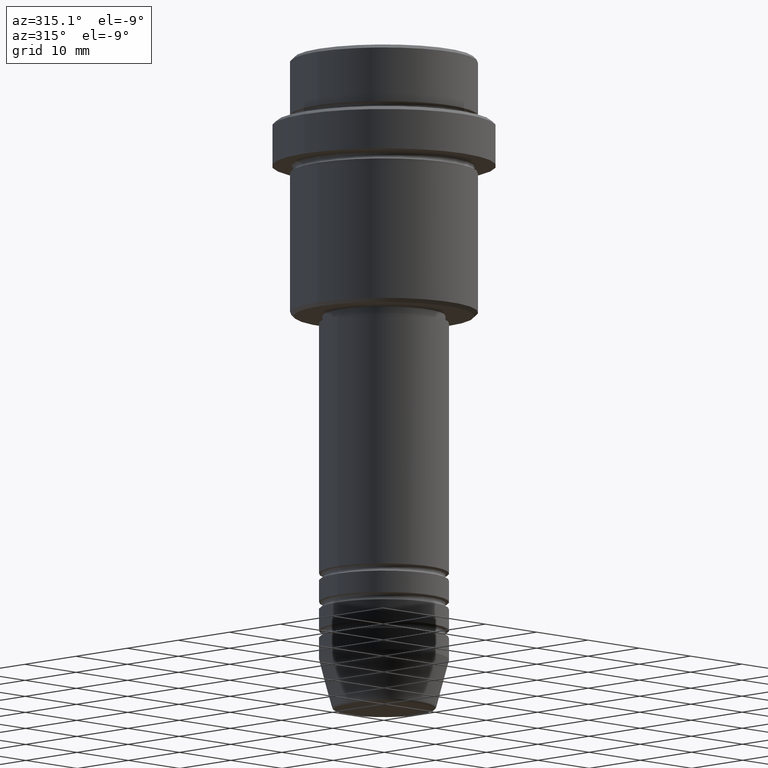
[diagram: clean part render]
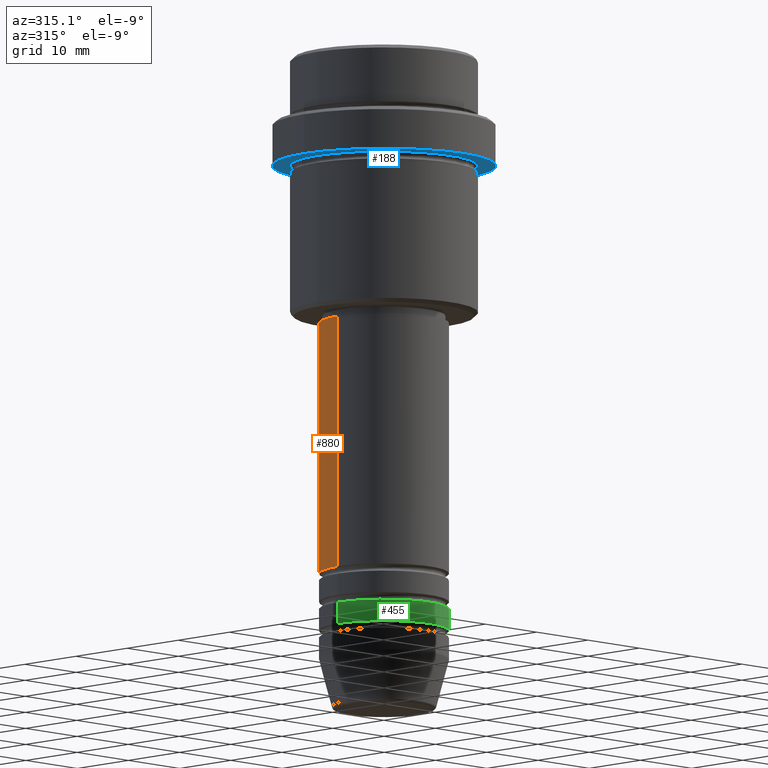
[diagram: same view with three faces highlighted in distinct colors, each labeled with its STEP entity id]
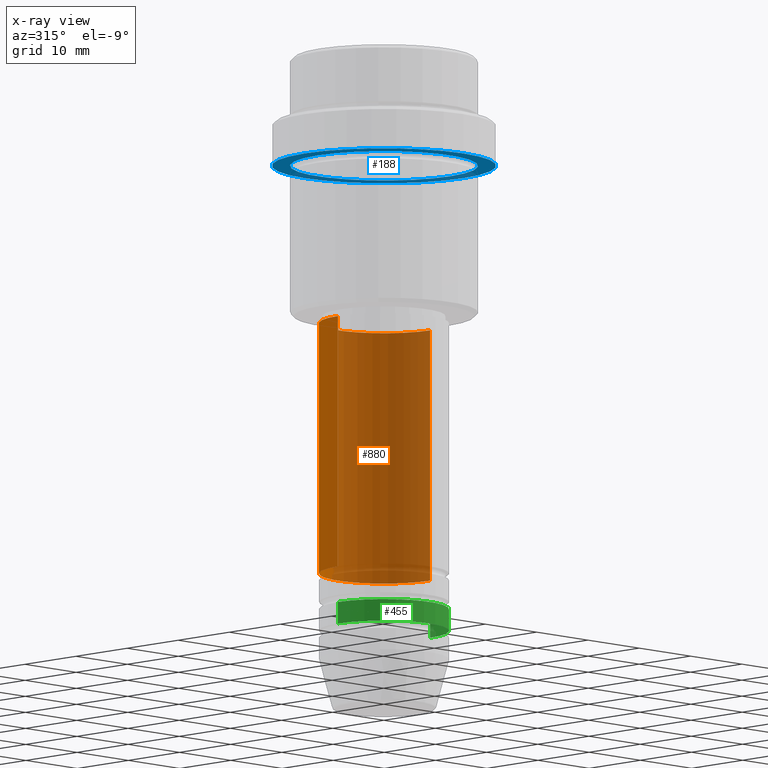
[diagram: x-ray of the same camera — body ghosted, the three highlighted faces saturated]
A machine part, auxiliary view with three faces highlighted in distinct colors.
The next image is the same camera in x-ray (body ghosted, the three faces saturated) — at least one of them is partly hidden behind the body in this view.
Their STEP definitions:

[orange] entity #880 — the highlighted cylindrical surface (partial cylindrical patch) has radius 9 mm, axis along (-0, -0, 1).
#17 = DIRECTION ( 'NONE',  ( -0.000000000000000000, -0.000000000000000000, 1.000000000000000000 ) ) ;
#63 = EDGE_CURVE ( 'NONE', #468, #1315, #1205, .T. ) ;
#82 = EDGE_CURVE ( 'NONE', #468, #1091, #256, .T. ) ;
#87 = CARTESIAN_POINT ( 'NONE',  ( -9.000000000000001776, 1.102182119232617911E-15, 0.000000000000000000 ) ) ;
#104 = VERTEX_POINT ( 'NONE', #361 ) ;
#118 = AXIS2_PLACEMENT_3D ( 'NONE', #894, #1191, #866 ) ;
#161 = AXIS2_PLACEMENT_3D ( 'NONE', #932, #399, #620 ) ;
#226 = CIRCLE ( 'NONE', #161, 9.000000000000001776 ) ;
#248 = VECTOR ( 'NONE', #1108, 1000.000000000000000 ) ;
#256 = LINE ( 'NONE', #472, #248 ) ;
#265 = EDGE_CURVE ( 'NONE', #1091, #104, #226, .T. ) ;
#286 = ORIENTED_EDGE ( 'NONE', *, *, #82, .F. ) ;
#361 = CARTESIAN_POINT ( 'NONE',  ( -9.000000000000001776, 1.102182119232617911E-15, -37.00000000000000000 ) ) ;
#396 = EDGE_CURVE ( 'NONE', #1315, #104, #533, .T. ) ;
#399 = DIRECTION ( 'NONE',  ( -0.000000000000000000, -0.000000000000000000, 1.000000000000000000 ) ) ;
#445 = AXIS2_PLACEMENT_3D ( 'NONE', #1306, #17, #758 ) ;
#468 = VERTEX_POINT ( 'NONE', #1300 ) ;
#472 = CARTESIAN_POINT ( 'NONE',  ( 9.000000000000001776, 0.000000000000000000, 0.000000000000000000 ) ) ;
#533 = LINE ( 'NONE', #87, #867 ) ;
#539 = ORIENTED_EDGE ( 'NONE', *, *, #396, .T. ) ;
#620 = DIRECTION ( 'NONE',  ( 1.000000000000000000, 0.000000000000000000, 0.000000000000000000 ) ) ;
#632 = DIRECTION ( 'NONE',  ( -0.000000000000000000, -0.000000000000000000, 1.000000000000000000 ) ) ;
#677 = ORIENTED_EDGE ( 'NONE', *, *, #63, .T. ) ;
#758 = DIRECTION ( 'NONE',  ( 1.000000000000000000, 0.000000000000000000, 0.000000000000000000 ) ) ;
#850 = CYLINDRICAL_SURFACE ( 'NONE', #118, 9.000000000000001776 ) ;
#866 = DIRECTION ( 'NONE',  ( 1.000000000000000000, 0.000000000000000000, 0.000000000000000000 ) ) ;
#867 = VECTOR ( 'NONE', #632, 1000.000000000000000 ) ;
#880 = ADVANCED_FACE ( 'NONE', ( #1171 ), #850, .T. ) ;
#894 = CARTESIAN_POINT ( 'NONE',  ( 0.000000000000000000, 0.000000000000000000, 0.000000000000000000 ) ) ;
#932 = CARTESIAN_POINT ( 'NONE',  ( 0.000000000000000000, 0.000000000000000000, -37.00000000000000000 ) ) ;
#1042 = CARTESIAN_POINT ( 'NONE',  ( 9.000000000000001776, 0.000000000000000000, -37.00000000000000000 ) ) ;
#1086 = CARTESIAN_POINT ( 'NONE',  ( -9.000000000000000000, 1.102182119232617714E-15, -71.99999999999987210 ) ) ;
#1091 = VERTEX_POINT ( 'NONE', #1042 ) ;
#1108 = DIRECTION ( 'NONE',  ( -0.000000000000000000, -0.000000000000000000, 1.000000000000000000 ) ) ;
#1126 = EDGE_LOOP ( 'NONE', ( #677, #539, #1386, #286 ) ) ;
#1171 = FACE_OUTER_BOUND ( 'NONE', #1126, .T. ) ;
#1191 = DIRECTION ( 'NONE',  ( -0.000000000000000000, -0.000000000000000000, 1.000000000000000000 ) ) ;
#1205 = CIRCLE ( 'NONE', #445, 9.000000000000000000 ) ;
#1300 = CARTESIAN_POINT ( 'NONE',  ( 9.000000000000000000, 0.000000000000000000, -71.99999999999987210 ) ) ;
#1306 = CARTESIAN_POINT ( 'NONE',  ( 0.000000000000000000, 0.000000000000000000, -71.99999999999987210 ) ) ;
#1315 = VERTEX_POINT ( 'NONE', #1086 ) ;
#1386 = ORIENTED_EDGE ( 'NONE', *, *, #265, .F. ) ;

[blue] entity #188 — the highlighted planar face has unit normal (0, 0, -1).
#22 = DIRECTION ( 'NONE',  ( -1.000000000000000000, 0.000000000000000000, -0.000000000000000000 ) ) ;
#34 = DIRECTION ( 'NONE',  ( 1.000000000000000000, 0.000000000000000000, 0.000000000000000000 ) ) ;
#106 = CARTESIAN_POINT ( 'NONE',  ( 0.000000000000000000, 0.000000000000000000, -14.99999999999999645 ) ) ;
#131 = DIRECTION ( 'NONE',  ( -1.000000000000000000, 0.000000000000000000, 0.000000000000000000 ) ) ;
#150 = ORIENTED_EDGE ( 'NONE', *, *, #1094, .F. ) ;
#188 = ADVANCED_FACE ( 'NONE', ( #342, #668 ), #789, .T. ) ;
#197 = VERTEX_POINT ( 'NONE', #351 ) ;
#231 = AXIS2_PLACEMENT_3D ( 'NONE', #404, #839, #1403 ) ;
#308 = EDGE_LOOP ( 'NONE', ( #150, #600 ) ) ;
#325 = CIRCLE ( 'NONE', #503, 12.99999999999999467 ) ;
#342 = FACE_BOUND ( 'NONE', #420, .T. ) ;
#349 = ORIENTED_EDGE ( 'NONE', *, *, #1353, .T. ) ;
#351 = CARTESIAN_POINT ( 'NONE',  ( -15.50000000000000000, 1.898202538678397557E-15, -14.99999999999999822 ) ) ;
#374 = VERTEX_POINT ( 'NONE', #1145 ) ;
#404 = CARTESIAN_POINT ( 'NONE',  ( 0.000000000000000000, 0.000000000000000000, -14.99999999999999822 ) ) ;
#420 = EDGE_LOOP ( 'NONE', ( #349, #1259 ) ) ;
#466 = DIRECTION ( 'NONE',  ( -0.000000000000000000, -0.000000000000000000, 1.000000000000000000 ) ) ;
#503 = AXIS2_PLACEMENT_3D ( 'NONE', #106, #656, #998 ) ;
#553 = CIRCLE ( 'NONE', #1081, 12.99999999999999467 ) ;
#561 = CARTESIAN_POINT ( 'NONE',  ( 0.000000000000000000, 15.50000000000000000, -14.99999999999999645 ) ) ;
#600 = ORIENTED_EDGE ( 'NONE', *, *, #1030, .F. ) ;
#601 = CARTESIAN_POINT ( 'NONE',  ( 0.000000000000000000, 0.000000000000000000, -14.99999999999999645 ) ) ;
#656 = DIRECTION ( 'NONE',  ( -0.000000000000000000, -0.000000000000000000, 1.000000000000000000 ) ) ;
#668 = FACE_OUTER_BOUND ( 'NONE', #308, .T. ) ;
#752 = AXIS2_PLACEMENT_3D ( 'NONE', #561, #1225, #22 ) ;
#789 = PLANE ( 'NONE',  #752 ) ;
#835 = EDGE_CURVE ( 'NONE', #1175, #374, #553, .T. ) ;
#839 = DIRECTION ( 'NONE',  ( -0.000000000000000000, -0.000000000000000000, 1.000000000000000000 ) ) ;
#892 = CIRCLE ( 'NONE', #231, 15.50000000000000000 ) ;
#928 = CARTESIAN_POINT ( 'NONE',  ( 0.000000000000000000, 0.000000000000000000, -14.99999999999999822 ) ) ;
#998 = DIRECTION ( 'NONE',  ( -1.000000000000000000, 0.000000000000000000, 0.000000000000000000 ) ) ;
#1005 = VERTEX_POINT ( 'NONE', #1222 ) ;
#1030 = EDGE_CURVE ( 'NONE', #197, #1005, #1082, .T. ) ;
#1081 = AXIS2_PLACEMENT_3D ( 'NONE', #601, #1110, #131 ) ;
#1082 = CIRCLE ( 'NONE', #1292, 15.50000000000000000 ) ;
#1094 = EDGE_CURVE ( 'NONE', #1005, #197, #892, .T. ) ;
#1110 = DIRECTION ( 'NONE',  ( -0.000000000000000000, -0.000000000000000000, 1.000000000000000000 ) ) ;
#1145 = CARTESIAN_POINT ( 'NONE',  ( -12.99999999999999467, 0.000000000000000000, -14.99999999999999645 ) ) ;
#1175 = VERTEX_POINT ( 'NONE', #1388 ) ;
#1222 = CARTESIAN_POINT ( 'NONE',  ( 15.50000000000000000, 0.000000000000000000, -14.99999999999999822 ) ) ;
#1225 = DIRECTION ( 'NONE',  ( 0.000000000000000000, 0.000000000000000000, -1.000000000000000000 ) ) ;
#1259 = ORIENTED_EDGE ( 'NONE', *, *, #835, .T. ) ;
#1292 = AXIS2_PLACEMENT_3D ( 'NONE', #928, #466, #34 ) ;
#1353 = EDGE_CURVE ( 'NONE', #374, #1175, #325, .T. ) ;
#1388 = CARTESIAN_POINT ( 'NONE',  ( 12.99999999999999467, 1.592040838891558504E-15, -14.99999999999999645 ) ) ;
#1403 = DIRECTION ( 'NONE',  ( 1.000000000000000000, 0.000000000000000000, 0.000000000000000000 ) ) ;

[green] entity #455 — the highlighted cylindrical surface (partial cylindrical patch) has radius 9 mm, axis along (-0, -0, 1).
#92 = DIRECTION ( 'NONE',  ( 1.000000000000000000, 0.000000000000000000, 0.000000000000000000 ) ) ;
#139 = CIRCLE ( 'NONE', #449, 9.000000000000000000 ) ;
#158 = CARTESIAN_POINT ( 'NONE',  ( 9.000000000000000000, 0.000000000000000000, -76.99999999999987210 ) ) ;
#165 = AXIS2_PLACEMENT_3D ( 'NONE', #1040, #1273, #1028 ) ;
#171 = LINE ( 'NONE', #266, #1209 ) ;
#266 = CARTESIAN_POINT ( 'NONE',  ( -9.000000000000000000, 1.102182119232617714E-15, 0.000000000000000000 ) ) ;
#296 = CARTESIAN_POINT ( 'NONE',  ( -9.000000000000000000, 1.102182119232617714E-15, -76.99999999999987210 ) ) ;
#327 = CYLINDRICAL_SURFACE ( 'NONE', #1053, 9.000000000000000000 ) ;
#406 = DIRECTION ( 'NONE',  ( -0.000000000000000000, -0.000000000000000000, 1.000000000000000000 ) ) ;
#421 = DIRECTION ( 'NONE',  ( 1.000000000000000000, 0.000000000000000000, 0.000000000000000000 ) ) ;
#449 = AXIS2_PLACEMENT_3D ( 'NONE', #563, #406, #421 ) ;
#455 = ADVANCED_FACE ( 'NONE', ( #1322 ), #327, .T. ) ;
#563 = CARTESIAN_POINT ( 'NONE',  ( 0.000000000000000000, 0.000000000000000000, -76.99999999999987210 ) ) ;
#598 = VECTOR ( 'NONE', #919, 1000.000000000000000 ) ;
#694 = CARTESIAN_POINT ( 'NONE',  ( 9.000000000000000000, 0.000000000000000000, -79.99999999999985789 ) ) ;
#701 = DIRECTION ( 'NONE',  ( -0.000000000000000000, -0.000000000000000000, 1.000000000000000000 ) ) ;
#766 = EDGE_CURVE ( 'NONE', #1189, #1012, #774, .T. ) ;
#774 = CIRCLE ( 'NONE', #165, 9.000000000000000000 ) ;
#833 = CARTESIAN_POINT ( 'NONE',  ( -9.000000000000000000, 1.102182119232617714E-15, -79.99999999999985789 ) ) ;
#848 = ORIENTED_EDGE ( 'NONE', *, *, #995, .T. ) ;
#860 = EDGE_CURVE ( 'NONE', #1128, #1075, #139, .T. ) ;
#874 = ORIENTED_EDGE ( 'NONE', *, *, #860, .F. ) ;
#919 = DIRECTION ( 'NONE',  ( -0.000000000000000000, -0.000000000000000000, 1.000000000000000000 ) ) ;
#973 = CARTESIAN_POINT ( 'NONE',  ( 0.000000000000000000, 0.000000000000000000, 0.000000000000000000 ) ) ;
#984 = DIRECTION ( 'NONE',  ( -0.000000000000000000, -0.000000000000000000, 1.000000000000000000 ) ) ;
#991 = EDGE_CURVE ( 'NONE', #1189, #1128, #171, .T. ) ;
#995 = EDGE_CURVE ( 'NONE', #1012, #1075, #1261, .T. ) ;
#1012 = VERTEX_POINT ( 'NONE', #694 ) ;
#1028 = DIRECTION ( 'NONE',  ( 1.000000000000000000, 0.000000000000000000, 0.000000000000000000 ) ) ;
#1040 = CARTESIAN_POINT ( 'NONE',  ( 0.000000000000000000, 0.000000000000000000, -79.99999999999985789 ) ) ;
#1053 = AXIS2_PLACEMENT_3D ( 'NONE', #973, #984, #92 ) ;
#1064 = ORIENTED_EDGE ( 'NONE', *, *, #766, .T. ) ;
#1075 = VERTEX_POINT ( 'NONE', #158 ) ;
#1128 = VERTEX_POINT ( 'NONE', #296 ) ;
#1149 = CARTESIAN_POINT ( 'NONE',  ( 9.000000000000000000, 0.000000000000000000, 0.000000000000000000 ) ) ;
#1189 = VERTEX_POINT ( 'NONE', #833 ) ;
#1206 = EDGE_LOOP ( 'NONE', ( #1295, #1064, #848, #874 ) ) ;
#1209 = VECTOR ( 'NONE', #701, 1000.000000000000000 ) ;
#1261 = LINE ( 'NONE', #1149, #598 ) ;
#1273 = DIRECTION ( 'NONE',  ( -0.000000000000000000, -0.000000000000000000, 1.000000000000000000 ) ) ;
#1295 = ORIENTED_EDGE ( 'NONE', *, *, #991, .F. ) ;
#1322 = FACE_OUTER_BOUND ( 'NONE', #1206, .T. ) ;